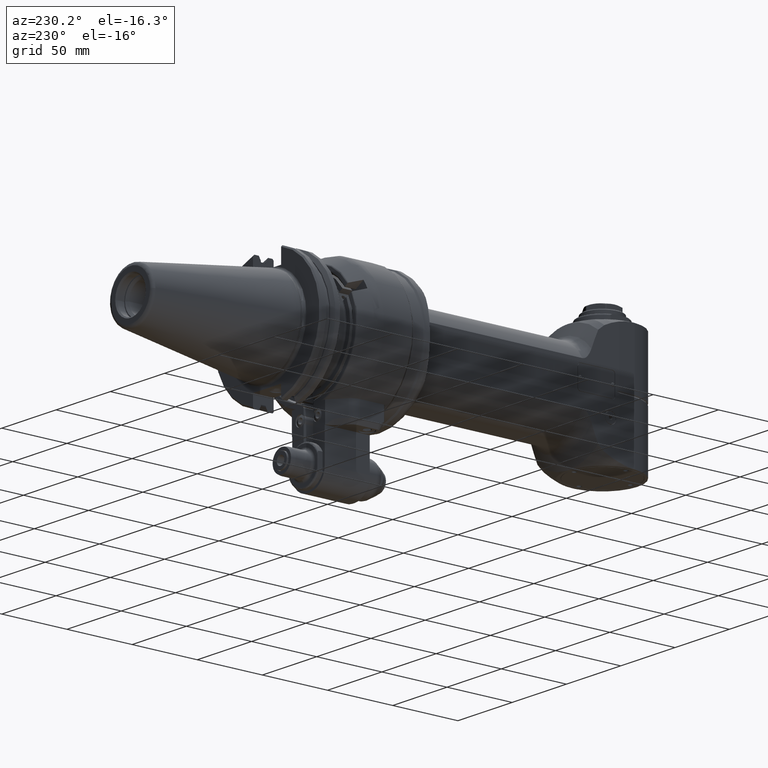
[diagram: clean part render]
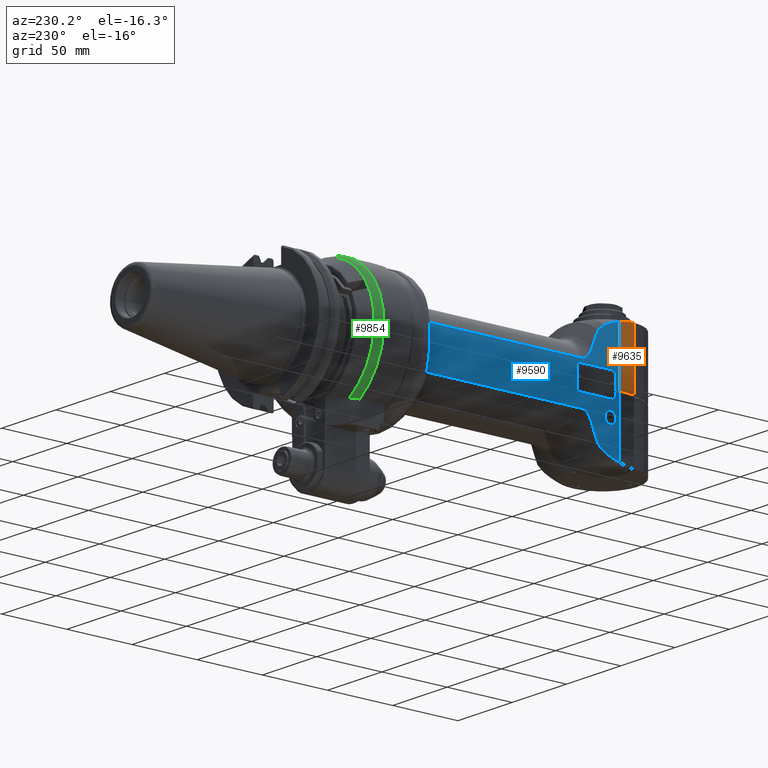
[diagram: same view with three faces highlighted in distinct colors, each labeled with its STEP entity id]
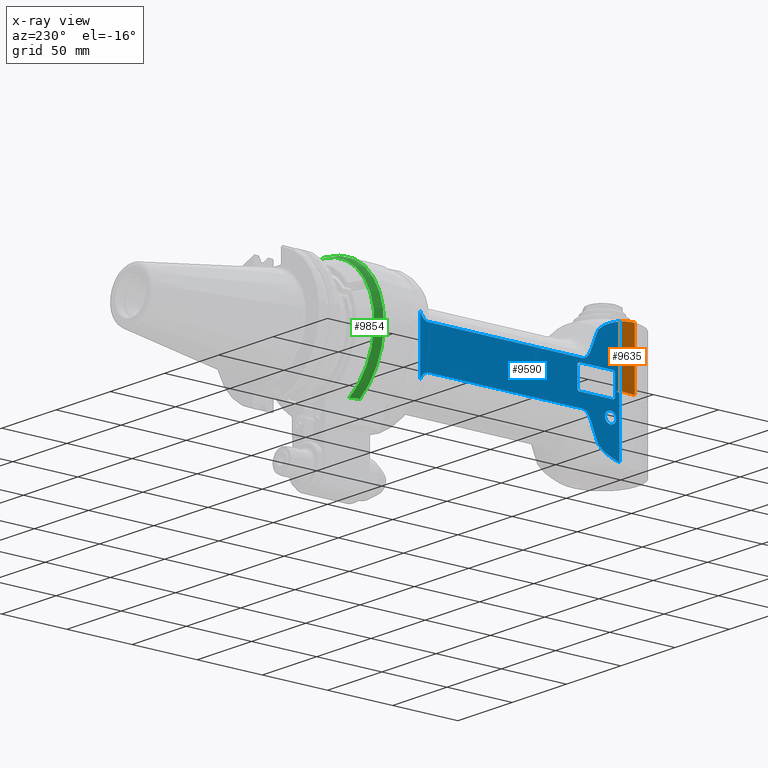
[diagram: x-ray of the same camera — body ghosted, the three highlighted faces saturated]
A machine part, auxiliary view with three faces highlighted in distinct colors.
The next image is the same camera in x-ray (body ghosted, the three faces saturated) — at least one of them is partly hidden behind the body in this view.
Their STEP definitions:

[orange] entity #9635 — the highlighted planar face has unit normal (0.9962, 0.0872, -0).
#45=ELLIPSE('',#10432,1229.91832837153,85.8339504534559);
#359=(
BOUNDED_CURVE()
B_SPLINE_CURVE(2,(#15367,#15368,#15369),.UNSPECIFIED.,.F.,.F.)
B_SPLINE_CURVE_WITH_KNOTS((3,3),(0.143372410739799,0.628091981687131),
 .UNSPECIFIED.)
CURVE()
GEOMETRIC_REPRESENTATION_ITEM()
RATIONAL_B_SPLINE_CURVE((1.00002875311508,1.00007235540808,1.00008213178225))
REPRESENTATION_ITEM('')
);
#836=CIRCLE('',#10429,12.0309363811135);
#1397=FACE_OUTER_BOUND('',#1999,.T.);
#1999=EDGE_LOOP('',(#6727,#6728,#6729,#6730,#6731,#6732,#6733));
#2641=LINE('',#15042,#3300);
#2654=LINE('',#15300,#3313);
#2655=LINE('',#15305,#3314);
#2666=LINE('',#15363,#3325);
#3300=VECTOR('',#11607,42.6337666199103);
#3313=VECTOR('',#11752,1.97939553945991);
#3314=VECTOR('',#11757,44.33431457505);
#3325=VECTOR('',#11828,12.0000000000099);
#4017=VERTEX_POINT('',#15037);
#4018=VERTEX_POINT('',#15041);
#4052=VERTEX_POINT('',#15272);
#4059=VERTEX_POINT('',#15296);
#4061=VERTEX_POINT('',#15304);
#4072=VERTEX_POINT('',#15358);
#4073=VERTEX_POINT('',#15365);
#4995=EDGE_CURVE('',#4018,#4017,#2641,.T.);
#5063=EDGE_CURVE('',#4059,#4052,#2654,.T.);
#5065=EDGE_CURVE('',#4052,#4061,#2655,.T.);
#5091=EDGE_CURVE('',#4072,#4017,#836,.T.);
#5093=EDGE_CURVE('',#4072,#4061,#2666,.T.);
#5094=EDGE_CURVE('',#4059,#4073,#45,.T.);
#5095=EDGE_CURVE('',#4018,#4073,#359,.T.);
#6727=ORIENTED_EDGE('',*,*,#4995,.T.);
#6728=ORIENTED_EDGE('',*,*,#5091,.F.);
#6729=ORIENTED_EDGE('',*,*,#5093,.T.);
#6730=ORIENTED_EDGE('',*,*,#5065,.F.);
#6731=ORIENTED_EDGE('',*,*,#5063,.F.);
#6732=ORIENTED_EDGE('',*,*,#5094,.T.);
#6733=ORIENTED_EDGE('',*,*,#5095,.F.);
#9322=PLANE('',#10431);
#9635=ADVANCED_FACE('',(#1397),#9322,.F.);
#10429=AXIS2_PLACEMENT_3D('',#15360,#11823,#11824);
#10431=AXIS2_PLACEMENT_3D('',#15364,#11829,#11830);
#10432=AXIS2_PLACEMENT_3D('',#15366,#11831,#11832);
#11607=DIRECTION('',(1.18262918331099E-7,0.999999999999993,8.78708548888194E-10));
#11752=DIRECTION('',(0.996194698091746,-2.94355035013514E-13,0.087155742747654));
#11757=DIRECTION('',(1.859123302981E-14,1.,0.));
#11823=DIRECTION('center_axis',(0.0871551300847987,9.38235698144622E-6,
-0.996194751648428));
#11824=DIRECTION('ref_axis',(-0.0540635477614624,-0.998526249862772,-0.00473931835107153));
#11828=DIRECTION('',(0.99619469705141,2.38730003080703E-8,0.0871557546387409));
#11829=DIRECTION('center_axis',(-0.087155742747664,0.,0.996194698091745));
#11830=DIRECTION('ref_axis',(-0.996194698091745,0.,-0.0871557427476639));
#11831=DIRECTION('center_axis',(0.087155742747664,0.,-0.996194698091745));
#11832=DIRECTION('ref_axis',(0.996194698091745,1.95246456332586E-17,0.087155742747664));
#15037=CARTESIAN_POINT('',(179.748791614688,-0.647955160222763,-27.9999999147077));
#15041=CARTESIAN_POINT('',(179.748786702316,-43.2817206299296,-28.0000001818397));
#15042=CARTESIAN_POINT('',(179.7487865899,-43.28172148823,-28.00000000058));
#15272=CARTESIAN_POINT('',(192.3532050542,-45.,-26.89725684848));
#15296=CARTESIAN_POINT('',(190.3813417123,-45.,-27.06977253691));
#15300=CARTESIAN_POINT('',(190.3813417123,-45.,-27.06977253691));
#15304=CARTESIAN_POINT('',(192.3532050542,-0.6656854249492,-26.89725684848));
#15305=CARTESIAN_POINT('',(192.3532050542,-45.,-26.89725684848));
#15358=CARTESIAN_POINT('',(180.398868691649,-0.66568568755196,-27.9431259279253));
#15360=CARTESIAN_POINT('Origin',(180.399226709655,11.3652507351128,-27.9429813438486));
#15363=CARTESIAN_POINT('',(180.3988686896,-0.6656857114253,-27.94312590414));
#15364=CARTESIAN_POINT('Origin',(207.6642303492,-60.0000024,-25.55771570821));
#15365=CARTESIAN_POINT('',(184.3803469425,-44.30990272342,-27.59479154915));
#15366=CARTESIAN_POINT('Origin',(1233.73687722347,-2.22044604925031E-14,
64.2120088473332));
#15367=CARTESIAN_POINT('Ctrl Pts',(179.748786900372,-43.2817198884291,-28.0000005472816));
#15368=CARTESIAN_POINT('Ctrl Pts',(182.0373834398,-43.7943299609006,-27.799774294697));
#15369=CARTESIAN_POINT('Ctrl Pts',(184.380346942561,-44.3099027234244,-27.5947915491504));

[blue] entity #9590 — the highlighted planar face has unit normal (1, 0, -0).
#233=FACE_BOUND('',#1951,.T.);
#234=FACE_BOUND('',#1952,.T.);
#324=(
BOUNDED_CURVE()
B_SPLINE_CURVE(2,(#14761,#14762,#14763),.UNSPECIFIED.,.F.,.F.)
B_SPLINE_CURVE_WITH_KNOTS((3,3),(2.12423992486836,3.54863226023933),
 .UNSPECIFIED.)
CURVE()
GEOMETRIC_REPRESENTATION_ITEM()
RATIONAL_B_SPLINE_CURVE((1.40912553974038,1.52349322192306,1.60728382082311))
REPRESENTATION_ITEM('')
);
#341=(
BOUNDED_CURVE()
B_SPLINE_CURVE(2,(#14965,#14966,#14967),.UNSPECIFIED.,.F.,.F.)
B_SPLINE_CURVE_WITH_KNOTS((3,3),(5.911075554242,6.53511731411264),
 .UNSPECIFIED.)
CURVE()
GEOMETRIC_REPRESENTATION_ITEM()
RATIONAL_B_SPLINE_CURVE((2.83542029122673,2.86424913789448,2.8787085714796))
REPRESENTATION_ITEM('')
);
#342=(
BOUNDED_CURVE()
B_SPLINE_CURVE(2,(#15002,#15003,#15004),.UNSPECIFIED.,.F.,.F.)
B_SPLINE_CURVE_WITH_KNOTS((3,3),(-3.54863226084123,-2.12423992535862),
 .UNSPECIFIED.)
CURVE()
GEOMETRIC_REPRESENTATION_ITEM()
RATIONAL_B_SPLINE_CURVE((1.60728382093994,1.52349322203381,1.40912553984282))
REPRESENTATION_ITEM('')
);
#343=(
BOUNDED_CURVE()
B_SPLINE_CURVE(2,(#15006,#15007,#15008),.UNSPECIFIED.,.F.,.F.)
B_SPLINE_CURVE_WITH_KNOTS((3,3),(-1.06197990538797,-0.71548418706465),
 .UNSPECIFIED.)
CURVE()
GEOMETRIC_REPRESENTATION_ITEM()
RATIONAL_B_SPLINE_CURVE((1.14759960233671,1.12564160697089,1.10229961796883))
REPRESENTATION_ITEM('')
);
#344=(
BOUNDED_CURVE()
B_SPLINE_CURVE(2,(#15010,#15011,#15012),.UNSPECIFIED.,.F.,.F.)
B_SPLINE_CURVE_WITH_KNOTS((3,3),(-0.569171366713806,-0.304481151146112),
 .UNSPECIFIED.)
CURVE()
GEOMETRIC_REPRESENTATION_ITEM()
RATIONAL_B_SPLINE_CURVE((1.05958688128553,1.04623787904139,1.03241798722861))
REPRESENTATION_ITEM('')
);
#345=(
BOUNDED_CURVE()
B_SPLINE_CURVE(2,(#15014,#15015,#15016),.UNSPECIFIED.,.F.,.F.)
B_SPLINE_CURVE_WITH_KNOTS((3,3),(-0.281743362539239,-0.0530632975672324),
 .UNSPECIFIED.)
CURVE()
GEOMETRIC_REPRESENTATION_ITEM()
RATIONAL_B_SPLINE_CURVE((1.02386561503919,1.01431977716839,1.00454739637676))
REPRESENTATION_ITEM('')
);
#346=(
BOUNDED_CURVE()
B_SPLINE_CURVE(2,(#15038,#15039,#15040),.UNSPECIFIED.,.F.,.F.)
B_SPLINE_CURVE_WITH_KNOTS((3,3),(-6.53511731429743,-5.91107555420696),
 .UNSPECIFIED.)
CURVE()
GEOMETRIC_REPRESENTATION_ITEM()
RATIONAL_B_SPLINE_CURVE((2.87870857148808,2.86424913790213,2.83542029122343))
REPRESENTATION_ITEM('')
);
#347=(
BOUNDED_CURVE()
B_SPLINE_CURVE(2,(#15046,#15047,#15048),.UNSPECIFIED.,.F.,.F.)
B_SPLINE_CURVE_WITH_KNOTS((3,3),(-19.782204832294,-19.5535247673175),
 .UNSPECIFIED.)
CURVE()
GEOMETRIC_REPRESENTATION_ITEM()
RATIONAL_B_SPLINE_CURVE((1.00454739637812,1.01431977716993,1.0238656150409))
REPRESENTATION_ITEM('')
);
#348=(
BOUNDED_CURVE()
B_SPLINE_CURVE(2,(#15050,#15051,#15052),.UNSPECIFIED.,.F.,.F.)
B_SPLINE_CURVE_WITH_KNOTS((3,3),(-15.84099071362,-15.5763004980513),
 .UNSPECIFIED.)
CURVE()
GEOMETRIC_REPRESENTATION_ITEM()
RATIONAL_B_SPLINE_CURVE((1.03241798723093,1.04623787904374,1.05958688128791))
REPRESENTATION_ITEM('')
);
#349=(
BOUNDED_CURVE()
B_SPLINE_CURVE(2,(#15053,#15054,#15055),.UNSPECIFIED.,.F.,.F.)
B_SPLINE_CURVE_WITH_KNOTS((3,3),(-12.4032536025752,-12.05675788425),
 .UNSPECIFIED.)
CURVE()
GEOMETRIC_REPRESENTATION_ITEM()
RATIONAL_B_SPLINE_CURVE((1.10229961797292,1.12564160697506,1.14759960234096))
REPRESENTATION_ITEM('')
);
#404=B_SPLINE_CURVE_WITH_KNOTS('',3,(#14726,#14727,#14728,#14729,#14730,
#14731,#14732,#14733,#14734,#14735,#14736,#14737),.UNSPECIFIED.,.F.,.F.,
(4,2,2,2,2,4),(-2.93602857360432,-2.81022163538033,-2.66127008993984,-2.44574033067297,
-2.2302105714061,-2.12135907273542),.UNSPECIFIED.);
#405=B_SPLINE_CURVE_WITH_KNOTS('',3,(#14745,#14746,#14747,#14748,#14749,
#14750,#14751,#14752,#14753,#14754,#14755,#14756,#14757,#14758),
 .UNSPECIFIED.,.F.,.F.,(4,2,2,2,2,2,4),(2.93597407218818,3.04857089918351,
3.17816712005981,3.36008479279991,3.54200246554002,3.77852981809237,3.92307824233944),
 .UNSPECIFIED.);
#413=B_SPLINE_CURVE_WITH_KNOTS('',3,(#14972,#14973,#14974,#14975,#14976,
#14977,#14978,#14979,#14980,#14981,#14982,#14983),.UNSPECIFIED.,.F.,.F.,
(4,2,2,2,2,4),(2.12339512886387,2.32994567883634,2.51186335157645,2.69378102431655,
2.82337724519285,2.93597407218818),.UNSPECIFIED.);
#414=B_SPLINE_CURVE_WITH_KNOTS('',3,(#14987,#14988,#14989,#14990,#14991,
#14992,#14993,#14994,#14995,#14996,#14997,#14998,#14999,#15000),
 .UNSPECIFIED.,.F.,.F.,(4,2,2,2,2,2,4),(-3.92307824233944,-3.77852981809237,
-3.54200246554002,-3.36008479279991,-3.17816712005981,-3.04857089918351,
-2.93597407218818),.UNSPECIFIED.);
#415=B_SPLINE_CURVE_WITH_KNOTS('',3,(#15019,#15020,#15021,#15022,#15023,
#15024,#15025,#15026,#15027,#15028,#15029,#15030,#15031,#15032,#15033,#15034,
#15035,#15036),.UNSPECIFIED.,.F.,.F.,(4,2,2,2,2,2,2,2,4),(1.07151663617778,
1.09324356313691,1.11216026242346,1.11735936317211,1.12158336061007,1.12580735804802,
1.13100645879667,1.14992315808322,1.17165008503223),.UNSPECIFIED.);
#791=CIRCLE('',#10333,4.25);
#792=CIRCLE('',#10334,2.);
#793=CIRCLE('',#10335,2.);
#794=CIRCLE('',#10336,2.);
#795=CIRCLE('',#10337,2.);
#1352=FACE_OUTER_BOUND('',#1950,.T.);
#1950=EDGE_LOOP('',(#6487,#6488,#6489,#6490,#6491,#6492,#6493,#6494,#6495,
#6496,#6497,#6498,#6499,#6500,#6501,#6502,#6503,#6504,#6505,#6506,#6507,
#6508));
#1951=EDGE_LOOP('',(#6509));
#1952=EDGE_LOOP('',(#6510,#6511,#6512,#6513,#6514,#6515,#6516,#6517));
#2626=LINE('',#14740,#3285);
#2633=LINE('',#14949,#3292);
#2638=LINE('',#14970,#3297);
#2639=LINE('',#14985,#3298);
#2640=LINE('',#15017,#3299);
#2641=LINE('',#15042,#3300);
#2642=LINE('',#15044,#3301);
#2643=LINE('',#15060,#3302);
#2644=LINE('',#15064,#3303);
#2645=LINE('',#15068,#3304);
#2646=LINE('',#15072,#3305);
#3285=VECTOR('',#11534,118.3910979735);
#3292=VECTOR('',#11589,42.6337666201003);
#3297=VECTOR('',#11604,41.77019528661);
#3298=VECTOR('',#11605,118.3910979735);
#3299=VECTOR('',#11606,10.);
#3300=VECTOR('',#11607,42.6337666199103);
#3301=VECTOR('',#11608,10.);
#3302=VECTOR('',#11611,25.);
#3303=VECTOR('',#11614,14.);
#3304=VECTOR('',#11617,25.);
#3305=VECTOR('',#11620,14.);
#3964=VERTEX_POINT('',#14715);
#3966=VERTEX_POINT('',#14719);
#3967=VERTEX_POINT('',#14739);
#3968=VERTEX_POINT('',#14743);
#3969=VERTEX_POINT('',#14760);
#4002=VERTEX_POINT('',#14946);
#4003=VERTEX_POINT('',#14948);
#4007=VERTEX_POINT('',#14963);
#4008=VERTEX_POINT('',#14969);
#4009=VERTEX_POINT('',#14971);
#4010=VERTEX_POINT('',#14984);
#4011=VERTEX_POINT('',#14986);
#4012=VERTEX_POINT('',#15001);
#4013=VERTEX_POINT('',#15005);
#4014=VERTEX_POINT('',#15009);
#4015=VERTEX_POINT('',#15013);
#4016=VERTEX_POINT('',#15018);
#4017=VERTEX_POINT('',#15037);
#4018=VERTEX_POINT('',#15041);
#4019=VERTEX_POINT('',#15043);
#4020=VERTEX_POINT('',#15045);
#4021=VERTEX_POINT('',#15049);
#4022=VERTEX_POINT('',#15056);
#4023=VERTEX_POINT('',#15058);
#4024=VERTEX_POINT('',#15059);
#4025=VERTEX_POINT('',#15061);
#4026=VERTEX_POINT('',#15063);
#4027=VERTEX_POINT('',#15065);
#4028=VERTEX_POINT('',#15067);
#4029=VERTEX_POINT('',#15069);
#4030=VERTEX_POINT('',#15071);
#4929=EDGE_CURVE('',#3964,#3966,#404,.T.);
#4930=EDGE_CURVE('',#3964,#3967,#2626,.T.);
#4933=EDGE_CURVE('',#3967,#3968,#405,.T.);
#4934=EDGE_CURVE('',#3969,#3968,#324,.T.);
#4975=EDGE_CURVE('',#4002,#4003,#2633,.T.);
#4983=EDGE_CURVE('',#4007,#4002,#341,.T.);
#4984=EDGE_CURVE('',#4008,#3966,#2638,.T.);
#4985=EDGE_CURVE('',#4008,#4009,#413,.T.);
#4986=EDGE_CURVE('',#4010,#4009,#2639,.T.);
#4987=EDGE_CURVE('',#4011,#4010,#414,.T.);
#4988=EDGE_CURVE('',#4011,#4012,#342,.T.);
#4989=EDGE_CURVE('',#4012,#4013,#343,.T.);
#4990=EDGE_CURVE('',#4013,#4014,#344,.T.);
#4991=EDGE_CURVE('',#4014,#4015,#345,.T.);
#4992=EDGE_CURVE('',#4015,#4003,#2640,.T.);
#4993=EDGE_CURVE('',#4016,#4007,#415,.F.);
#4994=EDGE_CURVE('',#4017,#4016,#346,.T.);
#4995=EDGE_CURVE('',#4018,#4017,#2641,.T.);
#4996=EDGE_CURVE('',#4018,#4019,#2642,.T.);
#4997=EDGE_CURVE('',#4019,#4020,#347,.T.);
#4998=EDGE_CURVE('',#4020,#4021,#348,.T.);
#4999=EDGE_CURVE('',#4021,#3969,#349,.T.);
#5000=EDGE_CURVE('',#4022,#4022,#791,.T.);
#5001=EDGE_CURVE('',#4023,#4024,#2643,.T.);
#5002=EDGE_CURVE('',#4024,#4025,#792,.T.);
#5003=EDGE_CURVE('',#4025,#4026,#2644,.T.);
#5004=EDGE_CURVE('',#4026,#4027,#793,.T.);
#5005=EDGE_CURVE('',#4027,#4028,#2645,.T.);
#5006=EDGE_CURVE('',#4028,#4029,#794,.T.);
#5007=EDGE_CURVE('',#4029,#4030,#2646,.T.);
#5008=EDGE_CURVE('',#4030,#4023,#795,.T.);
#6487=ORIENTED_EDGE('',*,*,#4984,.F.);
#6488=ORIENTED_EDGE('',*,*,#4985,.T.);
#6489=ORIENTED_EDGE('',*,*,#4986,.F.);
#6490=ORIENTED_EDGE('',*,*,#4987,.F.);
#6491=ORIENTED_EDGE('',*,*,#4988,.T.);
#6492=ORIENTED_EDGE('',*,*,#4989,.T.);
#6493=ORIENTED_EDGE('',*,*,#4990,.T.);
#6494=ORIENTED_EDGE('',*,*,#4991,.T.);
#6495=ORIENTED_EDGE('',*,*,#4992,.T.);
#6496=ORIENTED_EDGE('',*,*,#4975,.F.);
#6497=ORIENTED_EDGE('',*,*,#4983,.F.);
#6498=ORIENTED_EDGE('',*,*,#4993,.F.);
#6499=ORIENTED_EDGE('',*,*,#4994,.F.);
#6500=ORIENTED_EDGE('',*,*,#4995,.F.);
#6501=ORIENTED_EDGE('',*,*,#4996,.T.);
#6502=ORIENTED_EDGE('',*,*,#4997,.T.);
#6503=ORIENTED_EDGE('',*,*,#4998,.T.);
#6504=ORIENTED_EDGE('',*,*,#4999,.T.);
#6505=ORIENTED_EDGE('',*,*,#4934,.T.);
#6506=ORIENTED_EDGE('',*,*,#4933,.F.);
#6507=ORIENTED_EDGE('',*,*,#4930,.F.);
#6508=ORIENTED_EDGE('',*,*,#4929,.T.);
#6509=ORIENTED_EDGE('',*,*,#5000,.T.);
#6510=ORIENTED_EDGE('',*,*,#5001,.T.);
#6511=ORIENTED_EDGE('',*,*,#5002,.T.);
#6512=ORIENTED_EDGE('',*,*,#5003,.T.);
#6513=ORIENTED_EDGE('',*,*,#5004,.T.);
#6514=ORIENTED_EDGE('',*,*,#5005,.T.);
#6515=ORIENTED_EDGE('',*,*,#5006,.T.);
#6516=ORIENTED_EDGE('',*,*,#5007,.T.);
#6517=ORIENTED_EDGE('',*,*,#5008,.T.);
#9313=PLANE('',#10332);
#9590=ADVANCED_FACE('',(#1352,#233,#234),#9313,.F.);
#10332=AXIS2_PLACEMENT_3D('',#14968,#11602,#11603);
#10333=AXIS2_PLACEMENT_3D('',#15057,#11609,#11610);
#10334=AXIS2_PLACEMENT_3D('',#15062,#11612,#11613);
#10335=AXIS2_PLACEMENT_3D('',#15066,#11615,#11616);
#10336=AXIS2_PLACEMENT_3D('',#15070,#11618,#11619);
#10337=AXIS2_PLACEMENT_3D('',#15073,#11621,#11622);
#11534=DIRECTION('',(1.,0.,0.));
#11589=DIRECTION('',(-1.18254221909099E-7,0.999999999999993,-8.79004123880594E-10));
#11602=DIRECTION('center_axis',(0.,0.,1.));
#11603=DIRECTION('ref_axis',(-1.,0.,0.));
#11604=DIRECTION('',(-6.217432505124E-14,-1.,0.));
#11605=DIRECTION('',(-1.,0.,0.));
#11606=DIRECTION('',(0.986272311683691,0.165127003261456,0.));
#11607=DIRECTION('',(1.18262918331099E-7,0.999999999999993,8.78708548888194E-10));
#11608=DIRECTION('',(-0.98627231169139,0.165127003215467,0.));
#11609=DIRECTION('center_axis',(0.,0.,1.));
#11610=DIRECTION('ref_axis',(0.,-1.,0.));
#11611=DIRECTION('',(1.,0.,0.));
#11612=DIRECTION('center_axis',(0.,0.,1.));
#11613=DIRECTION('ref_axis',(0.,-1.,0.));
#11614=DIRECTION('',(0.,1.,0.));
#11615=DIRECTION('center_axis',(0.,0.,1.));
#11616=DIRECTION('ref_axis',(1.,0.,0.));
#11617=DIRECTION('',(-1.,0.,0.));
#11618=DIRECTION('center_axis',(0.,0.,1.));
#11619=DIRECTION('ref_axis',(-4.263256414561E-14,1.,0.));
#11620=DIRECTION('',(0.,-1.,0.));
#11621=DIRECTION('center_axis',(0.,0.,1.));
#11622=DIRECTION('ref_axis',(-1.,-2.6645352591E-14,0.));
#14715=CARTESIAN_POINT('',(32.99009987301,-15.49193338483,-28.));
#14719=CARTESIAN_POINT('',(26.80083020092,-20.88509764331,-28.));
#14726=CARTESIAN_POINT('Ctrl Pts',(32.99009987301,-15.4919333848297,-28.));
#14727=CARTESIAN_POINT('Ctrl Pts',(32.5707434122634,-15.4919333848297,-28.));
#14728=CARTESIAN_POINT('Ctrl Pts',(32.0752042743193,-15.5795640532649,-28.));
#14729=CARTESIAN_POINT('Ctrl Pts',(31.2080074002573,-15.8741350537825,-28.));
#14730=CARTESIAN_POINT('Ctrl Pts',(30.6847533920019,-16.1590740807169,-28.));
#14731=CARTESIAN_POINT('Ctrl Pts',(29.69452279622,-16.8630037215125,-28.));
#14732=CARTESIAN_POINT('Ctrl Pts',(29.1325458604225,-17.407552366296,-28.));
#14733=CARTESIAN_POINT('Ctrl Pts',(28.1323512917126,-18.608539452852,-28.));
#14734=CARTESIAN_POINT('Ctrl Pts',(27.6932483097344,-19.2642402902718,-28.));
#14735=CARTESIAN_POINT('Ctrl Pts',(27.1514292838462,-20.1999639756728,-28.));
#14736=CARTESIAN_POINT('Ctrl Pts',(26.9719387319417,-20.5356509781966,-28.));
#14737=CARTESIAN_POINT('Ctrl Pts',(26.8008302009176,-20.8850976433088,-28.));
#14739=CARTESIAN_POINT('',(151.3811978465,-15.49193338483,-28.));
#14740=CARTESIAN_POINT('',(32.99009987301,-15.49193338483,-28.));
#14743=CARTESIAN_POINT('',(158.3094010768,-22.62741699797,-28.));
#14745=CARTESIAN_POINT('Ctrl Pts',(151.3811978465,-15.4919333848297,-28.));
#14746=CARTESIAN_POINT('Ctrl Pts',(151.756520603151,-15.4919333848297,-28.));
#14747=CARTESIAN_POINT('Ctrl Pts',(152.201408747019,-15.5620993782773,-28.));
#14748=CARTESIAN_POINT('Ctrl Pts',(152.973572826116,-15.7977099228234,-28.));
#14749=CARTESIAN_POINT('Ctrl Pts',(153.440239087809,-16.0234209939818,-28.));
#14750=CARTESIAN_POINT('Ctrl Pts',(154.317498824133,-16.5789816504194,-28.));
#14751=CARTESIAN_POINT('Ctrl Pts',(154.820668957897,-17.0081024201193,-28.));
#14752=CARTESIAN_POINT('Ctrl Pts',(155.730416567205,-17.9652022129463,-28.));
#14753=CARTESIAN_POINT('Ctrl Pts',(156.138105696561,-18.492123966179,-28.));
#14754=CARTESIAN_POINT('Ctrl Pts',(156.921636569653,-19.6460707325903,-28.));
#14755=CARTESIAN_POINT('Ctrl Pts',(157.347305959135,-20.3989143849032,-28.));
#14756=CARTESIAN_POINT('Ctrl Pts',(157.934574124956,-21.6588360308148,-28.));
#14757=CARTESIAN_POINT('Ctrl Pts',(158.135199044939,-22.1473726465425,-28.));
#14758=CARTESIAN_POINT('Ctrl Pts',(158.309401076779,-22.6274169979778,-28.));
#14760=CARTESIAN_POINT('',(163.505553565938,-35.227830021265,-27.9999999663118));
#14761=CARTESIAN_POINT('Ctrl Pts',(163.505553553393,-35.2278300269596,-28.));
#14762=CARTESIAN_POINT('Ctrl Pts',(160.341636957163,-28.2276005599609,-28.));
#14763=CARTESIAN_POINT('Ctrl Pts',(158.309401076753,-22.627416997987,-28.));
#14946=CARTESIAN_POINT('',(179.748791614189,0.647955160117497,-27.9999999146774));
#14948=CARTESIAN_POINT('',(179.748786702207,43.2817206299176,-28.0000001818411));
#14949=CARTESIAN_POINT('',(179.7487916314,0.6479548681258,-27.9999999631));
#14963=CARTESIAN_POINT('',(178.0117813854,0.2828427125012,-28.));
#14965=CARTESIAN_POINT('Ctrl Pts',(178.011781385406,0.282842712488847,-28.));
#14966=CARTESIAN_POINT('Ctrl Pts',(178.893282175579,0.527225499005307,-28.));
#14967=CARTESIAN_POINT('Ctrl Pts',(179.748791599067,0.647955267274266,-28.));
#14968=CARTESIAN_POINT('Origin',(60.963057,-60.0000024,-28.));
#14969=CARTESIAN_POINT('',(26.80083020092,20.8850976433,-28.));
#14970=CARTESIAN_POINT('',(26.80083020092,20.8850976433,-28.));
#14971=CARTESIAN_POINT('',(32.99009987301,15.49193338483,-28.));
#14972=CARTESIAN_POINT('Ctrl Pts',(26.8008302009215,20.8850976433008,-28.));
#14973=CARTESIAN_POINT('Ctrl Pts',(27.1316615895168,20.2094567224948,-28.));
#14974=CARTESIAN_POINT('Ctrl Pts',(27.5057921799281,19.5634036381966,-28.));
#14975=CARTESIAN_POINT('Ctrl Pts',(28.233192022949,18.4921239661789,-28.));
#14976=CARTESIAN_POINT('Ctrl Pts',(28.6408811523053,17.9652022129463,-28.));
#14977=CARTESIAN_POINT('Ctrl Pts',(29.550628761613,17.0081024201193,-28.));
#14978=CARTESIAN_POINT('Ctrl Pts',(30.053798895377,16.5789816504194,-28.));
#14979=CARTESIAN_POINT('Ctrl Pts',(30.9310586317008,16.0234209939819,-28.));
#14980=CARTESIAN_POINT('Ctrl Pts',(31.3977248933945,15.7977099228234,-28.));
#14981=CARTESIAN_POINT('Ctrl Pts',(32.1698889724911,15.5620993782773,-28.));
#14982=CARTESIAN_POINT('Ctrl Pts',(32.6147771163589,15.4919333848297,-28.));
#14983=CARTESIAN_POINT('Ctrl Pts',(32.99009987301,15.4919333848297,-28.));
#14984=CARTESIAN_POINT('',(151.3811978465,15.49193338483,-28.));
#14985=CARTESIAN_POINT('',(151.3811978465,15.49193338483,-28.));
#14986=CARTESIAN_POINT('',(158.3094010768,22.62741699797,-28.));
#14987=CARTESIAN_POINT('Ctrl Pts',(158.309401076779,22.6274169979778,-28.));
#14988=CARTESIAN_POINT('Ctrl Pts',(158.135199044939,22.1473726465425,-28.));
#14989=CARTESIAN_POINT('Ctrl Pts',(157.934574124956,21.6588360308148,-28.));
#14990=CARTESIAN_POINT('Ctrl Pts',(157.347305959135,20.3989143849032,-28.));
#14991=CARTESIAN_POINT('Ctrl Pts',(156.921636569653,19.6460707325903,-28.));
#14992=CARTESIAN_POINT('Ctrl Pts',(156.138105696561,18.492123966179,-28.));
#14993=CARTESIAN_POINT('Ctrl Pts',(155.730416567205,17.9652022129463,-28.));
#14994=CARTESIAN_POINT('Ctrl Pts',(154.820668957897,17.0081024201193,-28.));
#14995=CARTESIAN_POINT('Ctrl Pts',(154.317498824133,16.5789816504194,-28.));
#14996=CARTESIAN_POINT('Ctrl Pts',(153.440239087809,16.0234209939818,-28.));
#14997=CARTESIAN_POINT('Ctrl Pts',(152.973572826116,15.7977099228234,-28.));
#14998=CARTESIAN_POINT('Ctrl Pts',(152.201408747019,15.5620993782773,-28.));
#14999=CARTESIAN_POINT('Ctrl Pts',(151.756520603151,15.4919333848297,-28.));
#15000=CARTESIAN_POINT('Ctrl Pts',(151.3811978465,15.4919333848297,-28.));
#15001=CARTESIAN_POINT('',(163.505553565937,35.2278300212644,-27.9999999663119));
#15002=CARTESIAN_POINT('Ctrl Pts',(158.309401076753,22.627416997987,-28.));
#15003=CARTESIAN_POINT('Ctrl Pts',(160.341636957163,28.2276005599607,-28.));
#15004=CARTESIAN_POINT('Ctrl Pts',(163.505553553393,35.227830026959,-28.));
#15005=CARTESIAN_POINT('',(168.306557193034,38.9871774623068,-27.9999999732447));
#15006=CARTESIAN_POINT('Ctrl Pts',(163.505553595481,35.2278299842789,-28.));
#15007=CARTESIAN_POINT('Ctrl Pts',(165.784458419904,37.0468690861927,-28.));
#15008=CARTESIAN_POINT('Ctrl Pts',(168.306557193735,38.9871774616868,-28.));
#15009=CARTESIAN_POINT('',(173.801511977789,41.42463038015,-27.9999999913712));
#15010=CARTESIAN_POINT('Ctrl Pts',(168.306557206341,38.9871774329175,-28.));
#15011=CARTESIAN_POINT('Ctrl Pts',(170.970752708651,40.1810319368883,-28.));
#15012=CARTESIAN_POINT('Ctrl Pts',(173.801511978861,41.4246303778784,-28.));
#15013=CARTESIAN_POINT('',(179.399588140475,43.2232573113744,-28.0000000623249));
#15014=CARTESIAN_POINT('Ctrl Pts',(173.801511980425,41.4246303721721,-28.));
#15015=CARTESIAN_POINT('Ctrl Pts',(176.541075098461,42.3106536374527,-28.));
#15016=CARTESIAN_POINT('Ctrl Pts',(179.399588048329,43.2232576000029,-28.));
#15017=CARTESIAN_POINT('',(179.399607606,43.22326006889,-28.));
#15018=CARTESIAN_POINT('',(178.0117813853,-0.2828427124746,-28.));
#15019=CARTESIAN_POINT('Ctrl Pts',(178.011781385404,0.282842712486572,-28.));
#15020=CARTESIAN_POINT('Ctrl Pts',(177.940299718709,0.263025499518554,-28.));
#15021=CARTESIAN_POINT('Ctrl Pts',(177.871063531426,0.239547008564843,-28.));
#15022=CARTESIAN_POINT('Ctrl Pts',(177.748914260568,0.180946253829772,-28.));
#15023=CARTESIAN_POINT('Ctrl Pts',(177.684244608833,0.141661392434838,-28.));
#15024=CARTESIAN_POINT('Ctrl Pts',(177.634985214419,0.0781364282326638,
-28.));
#15025=CARTESIAN_POINT('Ctrl Pts',(177.624407256981,0.0602312001148095,
-28.));
#15026=CARTESIAN_POINT('Ctrl Pts',(177.613744295409,0.0306861512758854,
-28.));
#15027=CARTESIAN_POINT('Ctrl Pts',(177.610628220016,0.0140799914598545,
-28.));
#15028=CARTESIAN_POINT('Ctrl Pts',(177.610628220016,-0.0140799914598545,
-28.));
#15029=CARTESIAN_POINT('Ctrl Pts',(177.613744295409,-0.0306861512758854,
-28.));
#15030=CARTESIAN_POINT('Ctrl Pts',(177.624407256981,-0.0602312001148095,
-28.));
#15031=CARTESIAN_POINT('Ctrl Pts',(177.634985214419,-0.0781364282326638,
-28.));
#15032=CARTESIAN_POINT('Ctrl Pts',(177.684244608833,-0.141661392434838,
-28.));
#15033=CARTESIAN_POINT('Ctrl Pts',(177.748914260568,-0.180946253829772,
-28.));
#15034=CARTESIAN_POINT('Ctrl Pts',(177.871063531395,-0.239547008550258,
-28.));
#15035=CARTESIAN_POINT('Ctrl Pts',(177.940299718645,-0.263025499496327,
-28.));
#15036=CARTESIAN_POINT('Ctrl Pts',(178.011781385304,-0.282842712458924,
-28.));
#15037=CARTESIAN_POINT('',(179.748791614688,-0.647955160222763,-27.9999999147077));
#15038=CARTESIAN_POINT('Ctrl Pts',(179.748791599571,-0.647955267343406,
-28.));
#15039=CARTESIAN_POINT('Ctrl Pts',(178.89328217579,-0.527225499068181,-28.));
#15040=CARTESIAN_POINT('Ctrl Pts',(178.011781385307,-0.282842712459219,
-28.));
#15041=CARTESIAN_POINT('',(179.748786702316,-43.2817206299296,-28.0000001818397));
#15042=CARTESIAN_POINT('',(179.7487865899,-43.28172148823,-28.00000000058));
#15043=CARTESIAN_POINT('',(179.399588140571,-43.2232573113919,-28.0000000623214));
#15044=CARTESIAN_POINT('',(179.7487865899,-43.28172148823,-28.));
#15045=CARTESIAN_POINT('',(173.801511977788,-41.4246303801496,-27.9999999913713));
#15046=CARTESIAN_POINT('Ctrl Pts',(179.399588048422,-43.2232576000324,-28.));
#15047=CARTESIAN_POINT('Ctrl Pts',(176.541075098505,-42.3106536374669,-28.));
#15048=CARTESIAN_POINT('Ctrl Pts',(173.801511980424,-41.4246303721718,-28.));
#15049=CARTESIAN_POINT('',(168.306557193034,-38.9871774623068,-27.9999999732447));
#15050=CARTESIAN_POINT('Ctrl Pts',(173.801511978861,-41.424630377878,-28.));
#15051=CARTESIAN_POINT('Ctrl Pts',(170.97075270865,-40.1810319368881,-28.));
#15052=CARTESIAN_POINT('Ctrl Pts',(168.306557206341,-38.9871774329174,-28.));
#15053=CARTESIAN_POINT('Ctrl Pts',(168.306557193735,-38.9871774616868,-28.));
#15054=CARTESIAN_POINT('Ctrl Pts',(165.784458419904,-37.0468690861929,-28.));
#15055=CARTESIAN_POINT('Ctrl Pts',(163.505553595481,-35.2278299842794,-28.));
#15056=CARTESIAN_POINT('',(173.,21.25,-28.));
#15057=CARTESIAN_POINT('Origin',(173.,17.,-28.));
#15058=CARTESIAN_POINT('',(149.5,-12.49999984387,-28.));
#15059=CARTESIAN_POINT('',(174.5,-12.49999984387,-28.));
#15060=CARTESIAN_POINT('',(149.5,-12.49999984387,-28.));
#15061=CARTESIAN_POINT('',(176.5,-10.49999984387,-28.));
#15062=CARTESIAN_POINT('Origin',(174.5,-10.49999984387,-28.));
#15063=CARTESIAN_POINT('',(176.5,3.500000156135,-28.));
#15064=CARTESIAN_POINT('',(176.5,-10.49999984387,-28.));
#15065=CARTESIAN_POINT('',(174.5,5.500000156135,-28.));
#15066=CARTESIAN_POINT('Origin',(174.5,3.500000156135,-28.));
#15067=CARTESIAN_POINT('',(149.5,5.500000156135,-28.));
#15068=CARTESIAN_POINT('',(174.5,5.500000156135,-28.));
#15069=CARTESIAN_POINT('',(147.5,3.500000156135,-28.));
#15070=CARTESIAN_POINT('Origin',(149.5,3.500000156135,-28.));
#15071=CARTESIAN_POINT('',(147.5,-10.49999984387,-28.));
#15072=CARTESIAN_POINT('',(147.5,3.500000156135,-28.));
#15073=CARTESIAN_POINT('Origin',(149.5,-10.49999984387,-28.));

[green] entity #9854 — the highlighted toroidal blend (fillet) surface has major radius 39 mm and minor (blend) radius 12 mm.
#214=TOROIDAL_SURFACE('',#10893,39.,12.);
#465=B_SPLINE_CURVE_WITH_KNOTS('',3,(#18067,#18068,#18069,#18070,#18071,
#18072,#18073,#18074,#18075,#18076,#18077,#18078,#18079,#18080,#18081,#18082,
#18083,#18084,#18085,#18086,#18087,#18088,#18089,#18090,#18091,#18092,#18093,
#18094,#18095,#18096,#18097,#18098,#18099,#18100,#18101,#18102,#18103,#18104,
#18105,#18106,#18107,#18108,#18109,#18110,#18111,#18112,#18113,#18114,#18115),
 .UNSPECIFIED.,.F.,.F.,(4,3,3,3,3,3,3,3,3,3,3,3,3,3,3,3,4),(0.,0.0625,0.125,
0.1875,0.25,0.3125,0.375,0.4375,0.5,0.5625,0.625,0.6875,0.75,0.8125,0.875,
0.9375,0.999999999824118),.UNSPECIFIED.);
#466=B_SPLINE_CURVE_WITH_KNOTS('',3,(#18117,#18118,#18119,#18120,#18121,
#18122,#18123,#18124),.UNSPECIFIED.,.F.,.F.,(4,2,2,4),(6.51722824915557,
6.66724065662605,6.88934843917143,7.11145622171681),.UNSPECIFIED.);
#1063=CIRCLE('',#10885,51.);
#1069=CIRCLE('',#10894,49.39230484541);
#1616=FACE_OUTER_BOUND('',#2254,.T.);
#2254=EDGE_LOOP('',(#7790,#7791,#7792,#7793));
#4426=VERTEX_POINT('',#17964);
#4427=VERTEX_POINT('',#17965);
#4441=VERTEX_POINT('',#18066);
#4442=VERTEX_POINT('',#18116);
#5629=EDGE_CURVE('',#4426,#4427,#1063,.T.);
#5646=EDGE_CURVE('',#4426,#4441,#465,.T.);
#5647=EDGE_CURVE('',#4442,#4427,#466,.T.);
#5648=EDGE_CURVE('',#4442,#4441,#1069,.T.);
#7790=ORIENTED_EDGE('',*,*,#5646,.F.);
#7791=ORIENTED_EDGE('',*,*,#5629,.T.);
#7792=ORIENTED_EDGE('',*,*,#5647,.F.);
#7793=ORIENTED_EDGE('',*,*,#5648,.T.);
#9854=ADVANCED_FACE('',(#1616),#214,.T.);
#10885=AXIS2_PLACEMENT_3D('',#17966,#12981,#12982);
#10893=AXIS2_PLACEMENT_3D('',#18065,#13002,#13003);
#10894=AXIS2_PLACEMENT_3D('',#18125,#13004,#13005);
#12981=DIRECTION('center_axis',(0.,1.,0.));
#12982=DIRECTION('ref_axis',(-0.567273574176089,0.,-0.823529411764684));
#13002=DIRECTION('center_axis',(0.,-1.,0.));
#13003=DIRECTION('ref_axis',(0.,0.,1.));
#13004=DIRECTION('center_axis',(0.,-1.,0.));
#13005=DIRECTION('ref_axis',(-0.0303691031364992,0.,0.999538752412674));
#17964=CARTESIAN_POINT('',(-28.93095228298,24.16025403779,-42.));
#17965=CARTESIAN_POINT('',(-1.49999998023586,24.1602540482335,50.9779364044794));
#17966=CARTESIAN_POINT('Origin',(0.,24.16025403784,0.));
#18065=CARTESIAN_POINT('Origin',(0.,24.16025403784,0.));
#18066=CARTESIAN_POINT('',(-25.992302278675,30.1602540402174,-42.0000000007194));
#18067=CARTESIAN_POINT('Ctrl Pts',(-28.9309522829796,24.16025403779,-41.9999999999995));
#18068=CARTESIAN_POINT('Ctrl Pts',(-28.9309522829799,24.28394164179,-41.9999999999999));
#18069=CARTESIAN_POINT('Ctrl Pts',(-28.9275840878819,24.4076640194828,-41.9999993973083));
#18070=CARTESIAN_POINT('Ctrl Pts',(-28.9208273051901,24.5314653439367,-42.0000000000002));
#18071=CARTESIAN_POINT('Ctrl Pts',(-28.9140705224984,24.6552666683906,-42.000000602692));
#18072=CARTESIAN_POINT('Ctrl Pts',(-28.9039241211381,24.7791469178375,-42.0000009143613));
#18073=CARTESIAN_POINT('Ctrl Pts',(-28.8903762868275,24.9029736426132,-41.9999999999987));
#18074=CARTESIAN_POINT('Ctrl Pts',(-28.8768284525168,25.026800367389,-41.9999990856362));
#18075=CARTESIAN_POINT('Ctrl Pts',(-28.8598810251561,25.1505737771437,-41.9999996200019));
#18076=CARTESIAN_POINT('Ctrl Pts',(-28.8394688894966,25.2744723110117,-41.9999999999998));
#18077=CARTESIAN_POINT('Ctrl Pts',(-28.819056753837,25.3983708448796,-42.0000003799978));
#18078=CARTESIAN_POINT('Ctrl Pts',(-28.795179093829,25.5223943110955,-41.9999994141132));
#18079=CARTESIAN_POINT('Ctrl Pts',(-28.7677486786099,25.646574883555,-41.9999999999999));
#18080=CARTESIAN_POINT('Ctrl Pts',(-28.7403182633909,25.7707554560145,-42.0000005858866));
#18081=CARTESIAN_POINT('Ctrl Pts',(-28.7093340207924,25.8950929579935,-42.0000011629192));
#18082=CARTESIAN_POINT('Ctrl Pts',(-28.6747514582338,26.0194375017713,-41.9999999999982));
#18083=CARTESIAN_POINT('Ctrl Pts',(-28.6401688956752,26.1437820455492,-41.9999988370772));
#18084=CARTESIAN_POINT('Ctrl Pts',(-28.6019902271706,26.2681342370467,-41.9999991756785));
#18085=CARTESIAN_POINT('Ctrl Pts',(-28.5600428529686,26.3927058390962,-41.9999999999979));
#18086=CARTESIAN_POINT('Ctrl Pts',(-28.5180954787666,26.5172774411457,-42.0000008243173));
#18087=CARTESIAN_POINT('Ctrl Pts',(-28.4723778159578,26.6420678660952,-41.9999998009225));
#18088=CARTESIAN_POINT('Ctrl Pts',(-28.4227651391714,26.7670123791982,-41.9999999999996));
#18089=CARTESIAN_POINT('Ctrl Pts',(-28.373152462385,26.8919568923013,-42.0000001990767));
#18090=CARTESIAN_POINT('Ctrl Pts',(-28.3196444338862,27.0170554408455,-42.0000011319368));
#18091=CARTESIAN_POINT('Ctrl Pts',(-28.2621454750497,27.1421871961599,-41.9999999999996));
#18092=CARTESIAN_POINT('Ctrl Pts',(-28.2046465162132,27.2673189514742,-41.9999988680624));
#18093=CARTESIAN_POINT('Ctrl Pts',(-28.1431586905604,27.3924848151478,-41.9999987307341));
#18094=CARTESIAN_POINT('Ctrl Pts',(-28.077399134795,27.5178798092283,-42.));
#18095=CARTESIAN_POINT('Ctrl Pts',(-28.0116395790296,27.6432748033088,-42.0000012692659));
#18096=CARTESIAN_POINT('Ctrl Pts',(-27.9416061069549,27.7688977622063,-42.0000006724574));
#18097=CARTESIAN_POINT('Ctrl Pts',(-27.8671692644714,27.8945792826382,-41.9999999999996));
#18098=CARTESIAN_POINT('Ctrl Pts',(-27.7927324219879,28.0202608030701,-41.9999993275417));
#18099=CARTESIAN_POINT('Ctrl Pts',(-27.7138933617665,28.1460016407576,-42.000000329053));
#18100=CARTESIAN_POINT('Ctrl Pts',(-27.6304120019801,28.2718065817906,-41.9999999999976));
#18101=CARTESIAN_POINT('Ctrl Pts',(-27.5469306421938,28.3976115228236,-41.9999996709422));
#18102=CARTESIAN_POINT('Ctrl Pts',(-27.4588076022911,28.5234808942457,-41.9999989369753));
#18103=CARTESIAN_POINT('Ctrl Pts',(-27.365696313212,28.6494852811124,-41.999999999998));
#18104=CARTESIAN_POINT('Ctrl Pts',(-27.272585024133,28.7754896679791,-42.0000010630208));
#18105=CARTESIAN_POINT('Ctrl Pts',(-27.174483733827,28.9016278236118,-42.0000012442479));
#18106=CARTESIAN_POINT('Ctrl Pts',(-27.0712252185524,29.0276922244926,-42.0000000000002));
#18107=CARTESIAN_POINT('Ctrl Pts',(-26.9679667032778,29.1537566253733,-41.9999987557525));
#18108=CARTESIAN_POINT('Ctrl Pts',(-26.8595529584751,29.2797489169493,-41.9999991836241));
#18109=CARTESIAN_POINT('Ctrl Pts',(-26.7455540759465,29.4057371386165,-41.999999999998));
#18110=CARTESIAN_POINT('Ctrl Pts',(-26.6315551934178,29.5317253602836,-42.0000008163719));
#18111=CARTESIAN_POINT('Ctrl Pts',(-26.5119698468893,29.6577082387456,-41.9999999223352));
#18112=CARTESIAN_POINT('Ctrl Pts',(-26.3865077465068,29.7835304480676,-42.0000000000002));
#18113=CARTESIAN_POINT('Ctrl Pts',(-26.2610456464774,29.9093526570356,-42.0000000776651));
#18114=CARTESIAN_POINT('Ctrl Pts',(-26.1297060777053,30.0350135319827,-42.0000000001843));
#18115=CARTESIAN_POINT('Ctrl Pts',(-25.9923022791054,30.1602540406896,-42.0000000001349));
#18116=CARTESIAN_POINT('',(-1.50000010664755,30.1602661977814,49.3695157362103));
#18117=CARTESIAN_POINT('Ctrl Pts',(-1.5,30.1602661994991,49.369515739184));
#18118=CARTESIAN_POINT('Ctrl Pts',(-1.5,29.6921076043473,49.6399326898079));
#18119=CARTESIAN_POINT('Ctrl Pts',(-1.5,29.2135933772369,49.8730330344608));
#18120=CARTESIAN_POINT('Ctrl Pts',(-1.5,28.0676526495586,50.3478104405525));
#18121=CARTESIAN_POINT('Ctrl Pts',(-1.5,27.2926978584861,50.5898074567293));
#18122=CARTESIAN_POINT('Ctrl Pts',(-1.5,25.7091782447219,50.9048707091654));
#18123=CARTESIAN_POINT('Ctrl Pts',(-1.5,24.9006133142862,50.9779364038993));
#18124=CARTESIAN_POINT('Ctrl Pts',(-1.5,24.16025403784,50.9779364038993));
#18125=CARTESIAN_POINT('Origin',(0.,30.16025403784,0.));